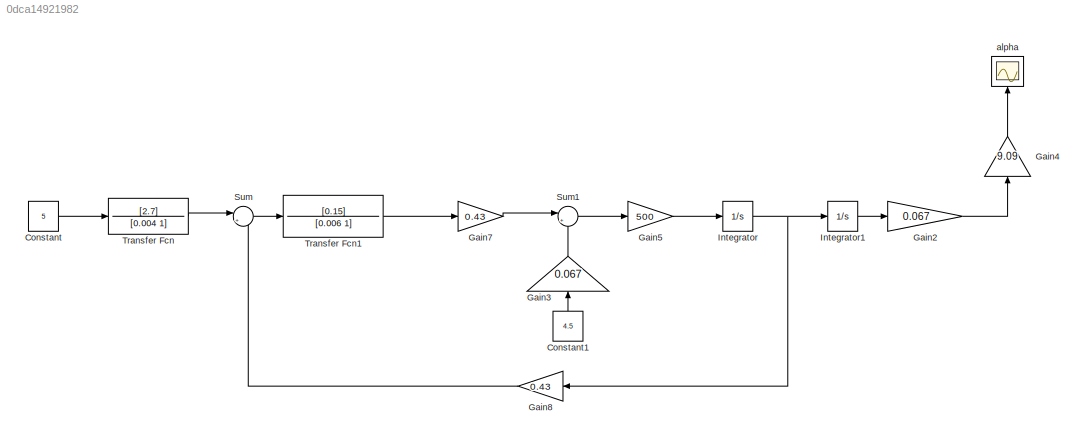
MODEL slx_0dca14921982
KIND model
BLOCK [Constant] Constant
  Value = 5
BLOCK [Constant] Constant1
  Value = 4.5
BLOCK [Gain] Gain2
  Gain = 0.067
  OutDataTypeStr = Inherit: Inherit via internal rule
  ParamDataTypeStr = Inherit: Inherit via internal rule
  SaturateOnIntegerOverflow = off
BLOCK [Gain] Gain3
  Gain = 0.067
  OutDataTypeStr = Inherit: Inherit via internal rule
  ParamDataTypeStr = Inherit: Inherit via internal rule
  SaturateOnIntegerOverflow = off
BLOCK [Gain] Gain4
  Gain = 9.09
  OutDataTypeStr = Inherit: Inherit via internal rule
  ParamDataTypeStr = Inherit: Inherit via internal rule
  SaturateOnIntegerOverflow = off
BLOCK [Gain] Gain5
  Gain = 500
  OutDataTypeStr = Inherit: Inherit via internal rule
  ParamDataTypeStr = Inherit: Inherit via internal rule
  SaturateOnIntegerOverflow = off
BLOCK [Gain] Gain7
  Gain = 0.43
  OutDataTypeStr = Inherit: Inherit via internal rule
  ParamDataTypeStr = Inherit: Inherit via internal rule
  SaturateOnIntegerOverflow = off
BLOCK [Gain] Gain8
  Gain = 0.43
  OutDataTypeStr = Inherit: Inherit via internal rule
  ParamDataTypeStr = Inherit: Inherit via internal rule
  SaturateOnIntegerOverflow = off
BLOCK [Integrator] Integrator
  Ports = [1, 1]
BLOCK [Integrator] Integrator1
  Ports = [1, 1]
BLOCK [Sum] Sum
  IconShape = round
  InputSameDT = off
  Inputs = |+-
  OutDataTypeStr = Inherit: Inherit via internal rule
  Ports = [2, 1]
  SaturateOnIntegerOverflow = off
BLOCK [Sum] Sum1
  IconShape = round
  InputSameDT = off
  Inputs = |+-
  OutDataTypeStr = Inherit: Inherit via internal rule
  Ports = [2, 1]
  SaturateOnIntegerOverflow = off
BLOCK [TransferFcn] Transfer Fcn
  Denominator = [0.004 1]
  Numerator = [2.7]
BLOCK [TransferFcn] Transfer Fcn1
  Denominator = [0.006 1]
  Numerator = [0.15]
BLOCK [Scope] alpha
  DataFormat = StructureWithTime
  Floating = off
  NumInputPorts = 1
  Ports = [1]
  SampleTime = 0
  SaveName = alpha
  SaveToWorkspace = on
  ShowLegends = off
LINE Constant1:1 -> Gain3:1
LINE Constant:1 -> Transfer Fcn:1
LINE Gain2:1 -> Gain4:1
LINE Gain3:1 -> Sum1:2
LINE Gain4:1 -> alpha:1
LINE Gain5:1 -> Integrator:1
LINE Gain7:1 -> Sum1:1
LINE Gain8:1 -> Sum:2
LINE Integrator1:1 -> Gain2:1
NET Integrator:1 -> Gain8:1, Integrator1:1
LINE Sum1:1 -> Gain5:1
LINE Sum:1 -> Transfer Fcn1:1
LINE Transfer Fcn1:1 -> Gain7:1
LINE Transfer Fcn:1 -> Sum:1
note: NET lines group one-source signal fan-out (src -> all destinations, sorted); 1:1 wires keep LINE
